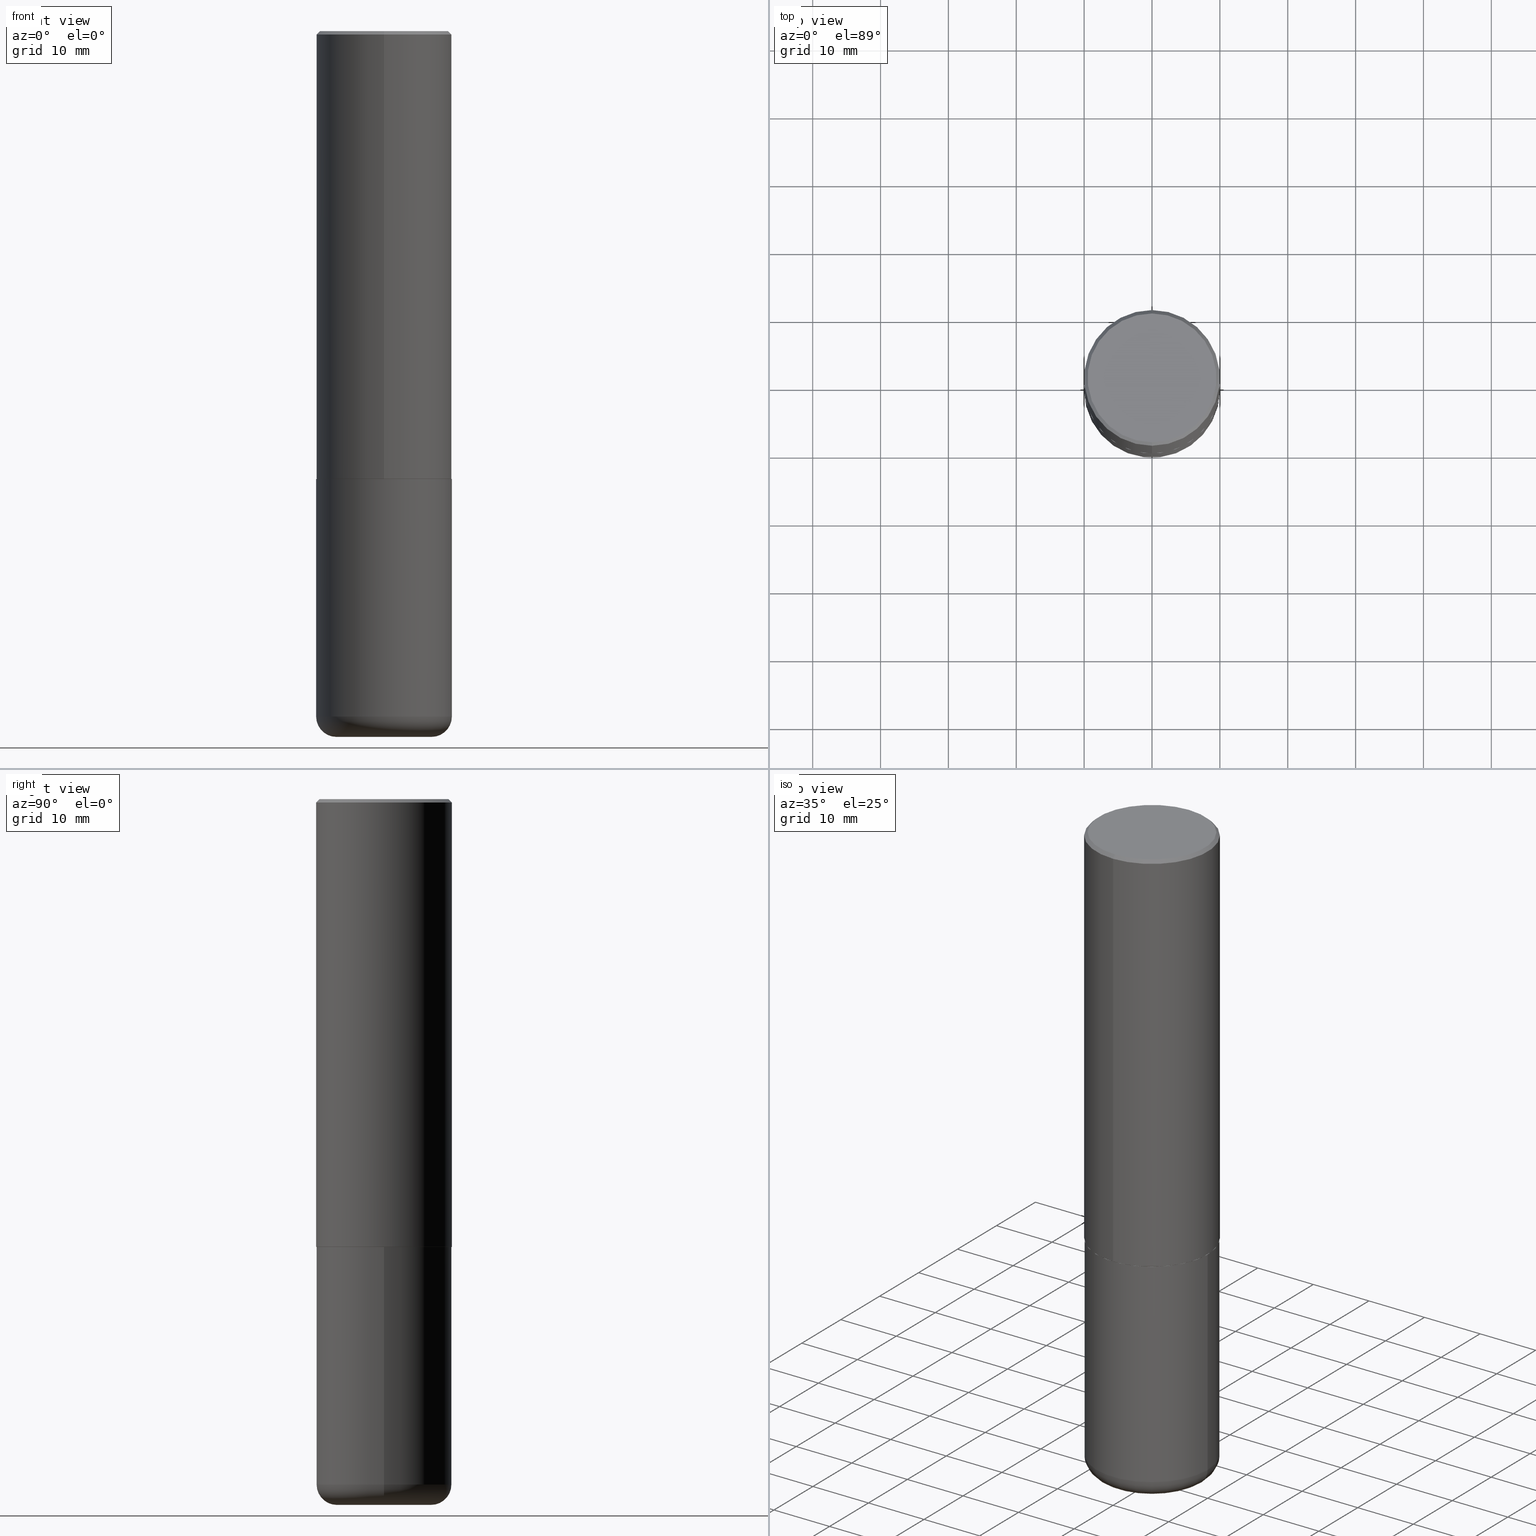
[diagram: canonical four-view strip — front | top / right | iso, engineering-drawing reading convention]
A machine part, canonical four-view strip (front | top / right | iso — engineering-drawing reading convention). The complete STEP part file that produces these views, byte-faithful:
ISO-10303-21;
HEADER;
FILE_DESCRIPTION (( 'STEP AP203' ),
    '1' );
FILE_NAME ('42723.STEP',
    '2024-03-04T04:07:09',
    ( '' ),
    ( '' ),
    'SwSTEP 2.0',
    'SolidWorks 2023',
    '' );
FILE_SCHEMA (( 'CONFIG_CONTROL_DESIGN' ));
ENDSEC;

DATA;
#1 = DIRECTION ( 'NONE',  ( 6.982962677686265922E-15, 1.000000000000000000, -3.488245283905469982E-15 ) ) ;
#2 = EDGE_CURVE ( 'NONE', #108, #218, #353, .T. ) ;
#3 = ADVANCED_FACE ( 'NONE', ( #334 ), #310, .T. ) ;
#4 = APPROVAL_ROLE ( '' ) ;
#5 = COORDINATED_UNIVERSAL_TIME_OFFSET ( 5, 0, .BEHIND. ) ;
#6 = DIRECTION ( 'NONE',  ( -2.445468806185136597E-29, 3.491481338843145583E-15, 1.000000000000000000 ) ) ;
#7 = APPROVAL_STATUS ( 'not_yet_approved' ) ;
#8 = DIRECTION ( 'NONE',  ( 1.000000000000000000, -6.982962677686265922E-15, 4.876176775795935793E-29 ) ) ;
#9 = AXIS2_PLACEMENT_3D ( 'NONE', #126, #55, #341 ) ;
#10 = COORDINATED_UNIVERSAL_TIME_OFFSET ( 5, 0, .BEHIND. ) ;
#11 = EDGE_CURVE ( 'NONE', #249, #54, #410, .T. ) ;
#12 = APPROVAL_STATUS ( 'not_yet_approved' ) ;
#13 = DIRECTION ( 'NONE',  ( -6.982962677686265922E-15, -1.000000000000000000, 3.488245283905469194E-15 ) ) ;
#14 = CC_DESIGN_PERSON_AND_ORGANIZATION_ASSIGNMENT ( #197, #131, ( #212 ) ) ;
#15 = ADVANCED_FACE ( 'NONE', ( #335 ), #210, .T. ) ;
#16 = DIRECTION ( 'NONE',  ( -6.982962677686265922E-15, -1.000000000000000000, 4.163344669033672479E-15 ) ) ;
#17 = CARTESIAN_POINT ( 'NONE',  ( 0.000000000000000000, 0.000000000000000000, 0.000000000000000000 ) ) ;
#18 = CARTESIAN_POINT ( 'NONE',  ( 9.724162160914577144E-29, -1.388352639577588421E-14, -3.976400000000000379 ) ) ;
#19 = DIRECTION ( 'NONE',  ( 2.447728531270410110E-29, -3.488245283905469588E-15, -1.000000000000000000 ) ) ;
#20 = DIRECTION ( 'NONE',  ( -2.447728531270410110E-29, 3.488245283905469588E-15, 1.000000000000000000 ) ) ;
#21 = EDGE_LOOP ( 'NONE', ( #394, #305 ) ) ;
#22 = EDGE_LOOP ( 'NONE', ( #24, #124, #80, #74 ) ) ;
#23 = DIRECTION ( 'NONE',  ( 1.000000000000000000, -6.982962677686267499E-15, 0.000000000000000000 ) ) ;
#24 = ORIENTED_EDGE ( 'NONE', *, *, #27, .F. ) ;
#25 = ORIENTED_EDGE ( 'NONE', *, *, #107, .T. ) ;
#26 = ORIENTED_EDGE ( 'NONE', *, *, #367, .F. ) ;
#27 = EDGE_CURVE ( 'NONE', #108, #249, #233, .T. ) ;
#28 = CARTESIAN_POINT ( 'NONE',  ( 2.793854037008778575E-15, 0.3926999999999909452, -2.598400000000002041 ) ) ;
#29 = PLANE ( 'NONE',  #73 ) ;
#30 = VERTEX_POINT ( 'NONE', #342 ) ;
#31 = DATE_AND_TIME ( #232, #418 ) ;
#32 = CARTESIAN_POINT ( 'NONE',  ( 0.000000000000000000, 0.000000000000000000, 0.000000000000000000 ) ) ;
#33 = ADVANCED_FACE ( 'NONE', ( #254 ), #29, .F. ) ;
#34 = PERSON_AND_ORGANIZATION_ROLE ( 'creator' ) ;
#35 = DIRECTION ( 'NONE',  ( -4.851104656540947709E-15, -0.7071067811865475727, -0.7071067811865474617 ) ) ;
#36 = MECHANICAL_CONTEXT ( 'NONE', #113, 'mechanical' ) ;
#37 = CARTESIAN_POINT ( 'NONE',  ( 6.354306145991459756E-29, -9.072265110850031044E-15, -2.598400000000000265 ) ) ;
#38 = DIRECTION ( 'NONE',  ( -2.447728531270410110E-29, 3.488245283905469588E-15, 1.000000000000000000 ) ) ;
#39 = CIRCLE ( 'NONE', #179, 0.3937000000000000499 ) ;
#40 = DIRECTION ( 'NONE',  ( -2.445468806185136597E-29, 3.491481338843145583E-15, 1.000000000000000000 ) ) ;
#41 = DIRECTION ( 'NONE',  ( 6.982962677686265133E-15, 1.000000000000000000, -3.491137977679279424E-15 ) ) ;
#42 = DIRECTION ( 'NONE',  ( -2.447728531270410110E-29, 3.488245283905469588E-15, 1.000000000000000000 ) ) ;
#43 = CIRCLE ( 'NONE', #101, 0.1180999999999999966 ) ;
#44 = CIRCLE ( 'NONE', #337, 0.3736999999999997546 ) ;
#45 = EDGE_LOOP ( 'NONE', ( #357, #340, #236, #336 ) ) ;
#46 = LENGTH_MEASURE_WITH_UNIT ( LENGTH_MEASURE( 0.02539999999999999897 ), #377 );
#47 = PRODUCT_RELATED_PRODUCT_CATEGORY ( 'detail', '', ( #213 ) ) ;
#48 = ORIENTED_EDGE ( 'NONE', *, *, #260, .T. ) ;
#49 = DIRECTION ( 'NONE',  ( -1.000000000000000000, 7.105427357601005014E-15, 0.000000000000000000 ) ) ;
#50 = APPROVAL_PERSON_ORGANIZATION ( #293, #164, #228 ) ;
#51 = DIRECTION ( 'NONE',  ( -2.447728531270410110E-29, 3.488245283905469588E-15, 1.000000000000000000 ) ) ;
#52 = DIRECTION ( 'NONE',  ( 1.000000000000000000, -6.982962677686268288E-15, 4.883557194083112901E-29 ) ) ;
#53 = ADVANCED_FACE ( 'NONE', ( #287 ), #184, .F. ) ;
#54 = VERTEX_POINT ( 'NONE', #199 ) ;
#55 = DIRECTION ( 'NONE',  ( -2.447728531270410110E-29, 3.488245283905469588E-15, 1.000000000000000000 ) ) ;
#56 = ORIENTED_EDGE ( 'NONE', *, *, #11, .T. ) ;
#57 = APPROVAL_DATE_TIME ( #61, #164 ) ;
#58 = VECTOR ( 'NONE', #121, 39.37007874015748143 ) ;
#59 = APPROVAL_ROLE ( '' ) ;
#60 = CIRCLE ( 'NONE', #147, 0.3937000000000000499 ) ;
#61 = DATE_AND_TIME ( #351, #217 ) ;
#62 = FACE_OUTER_BOUND ( 'NONE', #256, .T. ) ;
#63 = APPROVAL_STATUS ( 'not_yet_approved' ) ;
#64 = ORIENTED_EDGE ( 'NONE', *, *, #383, .T. ) ;
#65 = AXIS2_PLACEMENT_3D ( 'NONE', #161, #87, #52 ) ;
#66 = CARTESIAN_POINT ( 'NONE',  ( 0.3937000000000000499, -1.182145751705511584E-14, -2.598400000000000265 ) ) ;
#67 = AXIS2_PLACEMENT_3D ( 'NONE', #255, #278, #333 ) ;
#68 = ADVANCED_FACE ( 'NONE', ( #325 ), #349, .T. ) ;
#69 = EDGE_CURVE ( 'NONE', #54, #91, #168, .T. ) ;
#70 = EDGE_LOOP ( 'NONE', ( #85, #120, #312, #194 ) ) ;
#71 = DIRECTION ( 'NONE',  ( -2.447728531270410110E-29, 3.488245283905469588E-15, 1.000000000000000000 ) ) ;
#72 = CARTESIAN_POINT ( 'NONE',  ( 6.360177815653033563E-29, -9.063856545699975565E-15, -2.598400000000000265 ) ) ;
#73 = AXIS2_PLACEMENT_3D ( 'NONE', #222, #190, #285 ) ;
#74 = ORIENTED_EDGE ( 'NONE', *, *, #209, .F. ) ;
#75 = CC_DESIGN_SECURITY_CLASSIFICATION ( #187, ( #212 ) ) ;
#76 = FACE_OUTER_BOUND ( 'NONE', #237, .T. ) ;
#77 = EDGE_CURVE ( 'NONE', #225, #356, #264, .T. ) ;
#78 = ORIENTED_EDGE ( 'NONE', *, *, #260, .F. ) ;
#79 = FACE_OUTER_BOUND ( 'NONE', #156, .T. ) ;
#80 = ORIENTED_EDGE ( 'NONE', *, *, #92, .T. ) ;
#81 = FACE_OUTER_BOUND ( 'NONE', #70, .T. ) ;
#82 = AXIS2_PLACEMENT_3D ( 'NONE', #214, #328, #41 ) ;
#83 = LOCAL_TIME ( 23, 7, 9.000000000000000000, #170 ) ;
#84 = CC_DESIGN_PERSON_AND_ORGANIZATION_ASSIGNMENT ( #172, #34, ( #115 ) ) ;
#85 = ORIENTED_EDGE ( 'NONE', *, *, #252, .T. ) ;
#86 = DIRECTION ( 'NONE',  ( -6.982962677686265133E-15, -1.000000000000000000, 4.173946514383900962E-15 ) ) ;
#87 = DIRECTION ( 'NONE',  ( -2.445468806185136597E-29, 3.491481338843145583E-15, 1.000000000000000000 ) ) ;
#88 = ORIENTED_EDGE ( 'NONE', *, *, #405, .F. ) ;
#89 = ORIENTED_EDGE ( 'NONE', *, *, #69, .F. ) ;
#90 = CONICAL_SURFACE ( 'NONE', #169, 0.3926999999999999935, 0.7853981633976873100 ) ;
#91 = VERTEX_POINT ( 'NONE', #66 ) ;
#92 = EDGE_CURVE ( 'NONE', #218, #94, #43, .T. ) ;
#93 =( NAMED_UNIT ( * ) PLANE_ANGLE_UNIT ( ) SI_UNIT ( $, .RADIAN. ) );
#94 = VERTEX_POINT ( 'NONE', #171 ) ;
#95 = APPROVAL_DATE_TIME ( #31, #307 ) ;
#96 = VECTOR ( 'NONE', #211, 39.37007874015748143 ) ;
#97 = APPLICATION_PROTOCOL_DEFINITION ( 'international standard', 'config_control_design', 1994, #195 ) ;
#98 = CALENDAR_DATE ( 2024, 3, 3 ) ;
#99 = FACE_OUTER_BOUND ( 'NONE', #111, .T. ) ;
#100 = COORDINATED_UNIVERSAL_TIME_OFFSET ( 5, 0, .BEHIND. ) ;
#101 = AXIS2_PLACEMENT_3D ( 'NONE', #386, #355, #231 ) ;
#102 = AXIS2_PLACEMENT_3D ( 'NONE', #381, #259, #372 ) ;
#103 = ORIENTED_EDGE ( 'NONE', *, *, #361, .F. ) ;
#104 = LOCAL_TIME ( 23, 7, 9.000000000000000000, #5 ) ;
#105 = FACE_OUTER_BOUND ( 'NONE', #45, .T. ) ;
#106 = LINE ( 'NONE', #275, #96 ) ;
#107 = EDGE_CURVE ( 'NONE', #94, #249, #162, .T. ) ;
#108 = VERTEX_POINT ( 'NONE', #348 ) ;
#109 = ORGANIZATION ( 'UNSPECIFIED', 'UNSPECIFIED', '' ) ;
#110 = LOCAL_TIME ( 23, 7, 9.000000000000000000, #10 ) ;
#111 = EDGE_LOOP ( 'NONE', ( #78, #380, #159, #103 ) ) ;
#112 = CARTESIAN_POINT ( 'NONE',  ( 2.790301323329976493E-15, 0.3926999999999909452, -2.598400000000002041 ) ) ;
#113 = APPLICATION_CONTEXT ( 'configuration controlled 3d designs of mechanical parts and assemblies' ) ;
#114 = DIRECTION ( 'NONE',  ( -2.447728531270410110E-29, 3.488245283905469588E-15, 1.000000000000000000 ) ) ;
#115 = PRODUCT_DEFINITION ( 'UNKNOWN', '', #212, #240 ) ;
#116 = EDGE_LOOP ( 'NONE', ( #88, #220, #311, #317 ) ) ;
#117 = CIRCLE ( 'NONE', #346, 0.3937000000000000499 ) ;
#118 = CC_DESIGN_APPROVAL ( #307, ( #115 ) ) ;
#119 = CARTESIAN_POINT ( 'NONE',  ( 6.360177815653033563E-29, -9.063856545699975565E-15, -2.598400000000000265 ) ) ;
#120 = ORIENTED_EDGE ( 'NONE', *, *, #27, .T. ) ;
#121 = DIRECTION ( 'NONE',  ( -4.937700262165728178E-15, -0.7071067811867141062, 0.7071067811863809283 ) ) ;
#122 = DIRECTION ( 'NONE',  ( 7.105427357601001859E-15, 1.000000000000000000, -3.491481338843145583E-15 ) ) ;
#123 = ORIENTED_EDGE ( 'NONE', *, *, #209, .T. ) ;
#124 = ORIENTED_EDGE ( 'NONE', *, *, #2, .T. ) ;
#125 = APPROVAL_PERSON_ORGANIZATION ( #384, #130, #59 ) ;
#126 = CARTESIAN_POINT ( 'NONE',  ( 4.895457062540840994E-31, -6.976490567810969350E-17, -0.02000000000000008715 ) ) ;
#127 = DIRECTION ( 'NONE',  ( 1.000000000000000000, -6.982962677686265922E-15, 4.876176775795935793E-29 ) ) ;
#128 = UNCERTAINTY_MEASURE_WITH_UNIT (LENGTH_MEASURE( 1.000000000000000082E-05 ), #407, 'distance_accuracy_value', 'NONE');
#129 = PERSON_AND_ORGANIZATION ( #158, #109 ) ;
#130 = APPROVAL ( #7, 'UNSPECIFIED' ) ;
#131 = PERSON_AND_ORGANIZATION_ROLE ( 'creator' ) ;
#132 = DIRECTION ( 'NONE',  ( 1.000000000000000000, -6.982962677686267499E-15, 0.000000000000000000 ) ) ;
#133 = AXIS2_PLACEMENT_3D ( 'NONE', #37, #6, #132 ) ;
#134 = AXIS2_PLACEMENT_3D ( 'NONE', #347, #392, #261 ) ;
#135 = DATE_AND_TIME ( #98, #104 ) ;
#136 = ADVANCED_FACE ( 'NONE', ( #62 ), #322, .T. ) ;
#137 = DIRECTION ( 'NONE',  ( 1.000000000000000000, -6.982962677686267499E-15, 0.000000000000000000 ) ) ;
#138 = PERSON_AND_ORGANIZATION ( #158, #109 ) ;
#139 = EDGE_CURVE ( 'NONE', #191, #225, #44, .T. ) ;
#140 = AXIS2_PLACEMENT_3D ( 'NONE', #412, #122, #49 ) ;
#141 = FACE_OUTER_BOUND ( 'NONE', #116, .T. ) ;
#142 = AXIS2_PLACEMENT_3D ( 'NONE', #119, #20, #86 ) ;
#143 = CC_DESIGN_APPROVAL ( #130, ( #187 ) ) ;
#144 = CARTESIAN_POINT ( 'NONE',  ( -2.632373081744935132E-15, -0.3736999999999997546, 1.613949360642593119E-15 ) ) ;
#145 = DIRECTION ( 'NONE',  ( -2.445468806185136597E-29, 3.491481338843145583E-15, 1.000000000000000000 ) ) ;
#146 = CLOSED_SHELL ( 'NONE', ( #173, #203, #283, #308, #268, #150, #330, #53 ) ) ;
#147 = AXIS2_PLACEMENT_3D ( 'NONE', #175, #40, #360 ) ;
#148 = DIRECTION ( 'NONE',  ( -6.982962677686265133E-15, -1.000000000000000000, 3.491137977679279424E-15 ) ) ;
#149 = VERTEX_POINT ( 'NONE', #390 ) ;
#150 = ADVANCED_FACE ( 'NONE', ( #99 ), #90, .T. ) ;
#151 = CARTESIAN_POINT ( 'NONE',  ( 6.354306145991459756E-29, -9.072265110850031044E-15, -2.598400000000000265 ) ) ;
#152 = ORIENTED_EDGE ( 'NONE', *, *, #188, .T. ) ;
#153 = CARTESIAN_POINT ( 'NONE',  ( -2.700978061722651252E-15, -0.3937000000000001054, -0.01999999999999870978 ) ) ;
#154 = CARTESIAN_POINT ( 'NONE',  ( 0.000000000000000000, 0.000000000000000000, 0.000000000000000000 ) ) ;
#155 = CIRCLE ( 'NONE', #9, 0.3937000000000000499 ) ;
#156 = EDGE_LOOP ( 'NONE', ( #411, #48, #282, #302 ) ) ;
#157 = CARTESIAN_POINT ( 'NONE',  ( 6.357730087121764723E-29, -9.060368300416068565E-15, -2.597400000000000375 ) ) ;
#158 = PERSON ( 'UNSPECIFIED', 'UNSPECIFIED', 'UNSPECIFIED', ('UNSPECIFIED'), ('UNSPECIFIED'), ('UNSPECIFIED') ) ;
#159 = ORIENTED_EDGE ( 'NONE', *, *, #350, .T. ) ;
#160 = DIRECTION ( 'NONE',  ( -2.445468806185136877E-29, 3.491481338843145188E-15, 1.000000000000000000 ) ) ;
#161 = CARTESIAN_POINT ( 'NONE',  ( 9.724162160914577144E-29, -1.388352639577588421E-14, -3.976400000000000379 ) ) ;
#162 = CIRCLE ( 'NONE', #185, 0.3937000000000000499 ) ;
#163 = AXIS2_PLACEMENT_3D ( 'NONE', #18, #271, #246 ) ;
#164 = APPROVAL ( #63, 'UNSPECIFIED' ) ;
#165 = ADVANCED_FACE ( 'NONE', ( #81 ), #224, .T. ) ;
#166 = DATE_TIME_ROLE ( 'classification_date' ) ;
#167 = CALENDAR_DATE ( 2024, 3, 3 ) ;
#168 = CIRCLE ( 'NONE', #133, 0.3937000000000000499 ) ;
#169 = AXIS2_PLACEMENT_3D ( 'NONE', #352, #38, #241 ) ;
#170 = COORDINATED_UNIVERSAL_TIME_OFFSET ( 5, 0, .BEHIND. ) ;
#171 = CARTESIAN_POINT ( 'NONE',  ( 0.3937000000000000499, -1.663271880198097216E-14, -3.976400000000000823 ) ) ;
#172 = PERSON_AND_ORGANIZATION ( #158, #109 ) ;
#173 = ADVANCED_FACE ( 'NONE', ( #79 ), #402, .T. ) ;
#174 = CIRCLE ( 'NONE', #67, 0.3926999999999999935 ) ;
#175 = CARTESIAN_POINT ( 'NONE',  ( 9.724162160914578265E-29, -1.388352639577588736E-14, -3.976400000000000823 ) ) ;
#176 = CARTESIAN_POINT ( 'NONE',  ( -0.3937000000000000499, -1.108611964508837021E-14, -3.976400000000000823 ) ) ;
#177 = CARTESIAN_POINT ( 'NONE',  ( -2.742209443527332910E-15, -0.3927000000000090973, -2.598399999999998489 ) ) ;
#178 = DIRECTION ( 'NONE',  ( -6.982962677686265922E-15, -1.000000000000000000, 3.488245283905469194E-15 ) ) ;
#179 = AXIS2_PLACEMENT_3D ( 'NONE', #151, #284, #23 ) ;
#180 =( NAMED_UNIT ( * ) SI_UNIT ( $, .STERADIAN. ) SOLID_ANGLE_UNIT ( ) );
#181 = EDGE_CURVE ( 'NONE', #149, #356, #106, .T. ) ;
#182 = CARTESIAN_POINT ( 'NONE',  ( 1.001297202692504215E-28, -1.429587034189326149E-14, -4.094500000000000028 ) ) ;
#183 = LINE ( 'NONE', #409, #408 ) ;
#184 = PLANE ( 'NONE',  #216 ) ;
#185 = AXIS2_PLACEMENT_3D ( 'NONE', #393, #324, #137 ) ;
#186 = AXIS2_PLACEMENT_3D ( 'NONE', #72, #114, #300 ) ;
#187 = SECURITY_CLASSIFICATION ( '', '', #205 ) ;
#188 = EDGE_CURVE ( 'NONE', #149, #30, #295, .T. ) ;
#189 = LINE ( 'NONE', #414, #354 ) ;
#190 = DIRECTION ( 'NONE',  ( 2.438088387897960049E-29, -3.491481338843145188E-15, -1.000000000000000000 ) ) ;
#191 = VERTEX_POINT ( 'NONE', #368 ) ;
#192 = CC_DESIGN_PERSON_AND_ORGANIZATION_ASSIGNMENT ( #138, #198, ( #213 ) ) ;
#193 = PERSON_AND_ORGANIZATION ( #158, #109 ) ;
#194 = ORIENTED_EDGE ( 'NONE', *, *, #92, .F. ) ;
#195 = APPLICATION_CONTEXT ( 'configuration controlled 3d designs of mechanical parts and assemblies' ) ;
#196 = AXIS2_PLACEMENT_3D ( 'NONE', #301, #145, #272 ) ;
#197 = PERSON_AND_ORGANIZATION ( #158, #109 ) ;
#198 = PERSON_AND_ORGANIZATION_ROLE ( 'design_owner' ) ;
#199 = CARTESIAN_POINT ( 'NONE',  ( -0.3937000000000000499, -8.680489002625445206E-15, -2.598400000000000265 ) ) ;
#200 = APPROVAL_DATE_TIME ( #290, #130 ) ;
#201 = DIRECTION ( 'NONE',  ( -2.445468806185136597E-29, 3.491481338843145583E-15, 1.000000000000000000 ) ) ;
#202 = ORIENTED_EDGE ( 'NONE', *, *, #320, .F. ) ;
#203 = ADVANCED_FACE ( 'NONE', ( #326 ), #298, .T. ) ;
#204 = AXIS2_PLACEMENT_3D ( 'NONE', #242, #364, #178 ) ;
#205 = SECURITY_CLASSIFICATION_LEVEL ( 'unclassified' ) ;
#206 = CC_DESIGN_APPROVAL ( #164, ( #212 ) ) ;
#207 = CC_DESIGN_DATE_AND_TIME_ASSIGNMENT ( #263, #166, ( #187 ) ) ;
#208 = CARTESIAN_POINT ( 'NONE',  ( 2.749192406205083217E-15, 0.3936999999999999389, -0.02000000000000146105 ) ) ;
#209 = EDGE_CURVE ( 'NONE', #249, #94, #60, .T. ) ;
#210 = TOROIDAL_SURFACE ( 'NONE', #65, 0.2756000000000000116, 0.1181000000000000105 ) ;
#211 = DIRECTION ( 'NONE',  ( -2.447728531270410390E-29, 3.488245283905469982E-15, 1.000000000000000000 ) ) ;
#212 = PRODUCT_DEFINITION_FORMATION_WITH_SPECIFIED_SOURCE ( 'ANY', '', #213, .NOT_KNOWN. ) ;
#213 = PRODUCT ( '42723', '42723', '', ( #36 ) ) ;
#214 = CARTESIAN_POINT ( 'NONE',  ( 4.895457062540840994E-31, -6.976490567810969350E-17, -0.02000000000000008715 ) ) ;
#215 = CARTESIAN_POINT ( 'NONE',  ( 4.895457062540840994E-31, -6.976490567810969350E-17, -0.02000000000000008715 ) ) ;
#216 = AXIS2_PLACEMENT_3D ( 'NONE', #415, #379, #1 ) ;
#217 = LOCAL_TIME ( 23, 7, 9.000000000000000000, #100 ) ;
#218 = VERTEX_POINT ( 'NONE', #397 ) ;
#219 = ORIENTED_EDGE ( 'NONE', *, *, #139, .T. ) ;
#220 = ORIENTED_EDGE ( 'NONE', *, *, #361, .T. ) ;
#221 = DIRECTION ( 'NONE',  ( -2.447728531270410390E-29, 3.488245283905469982E-15, 1.000000000000000000 ) ) ;
#222 = CARTESIAN_POINT ( 'NONE',  ( 6.354306145991459756E-29, -9.072265110850031044E-15, -2.598400000000000265 ) ) ;
#223 = DIRECTION ( 'NONE',  ( -2.445468806185136597E-29, 3.491481338843145583E-15, 1.000000000000000000 ) ) ;
#224 = TOROIDAL_SURFACE ( 'NONE', #163, 0.2756000000000000116, 0.1181000000000000105 ) ;
#225 = VERTEX_POINT ( 'NONE', #144 ) ;
#226 = ORIENTED_EDGE ( 'NONE', *, *, #77, .T. ) ;
#227 = CARTESIAN_POINT ( 'NONE',  ( -0.3937000000000000499, 2.797406750687514786E-15, -1.936584745033356735E-29 ) ) ;
#228 = APPROVAL_ROLE ( '' ) ;
#229 = CLOSED_SHELL ( 'NONE', ( #3, #165, #33, #136, #15, #68 ) ) ;
#230 = CIRCLE ( 'NONE', #378, 0.3937000000000002720 ) ;
#231 = DIRECTION ( 'NONE',  ( 1.000000000000000000, -6.982962677686273021E-15, 0.000000000000000000 ) ) ;
#232 = CALENDAR_DATE ( 2024, 3, 3 ) ;
#233 = CIRCLE ( 'NONE', #140, 0.1180999999999999966 ) ;
#234 = CIRCLE ( 'NONE', #196, 0.2756000000000000116 ) ;
#235 = PERSON_AND_ORGANIZATION ( #158, #109 ) ;
#236 = ORIENTED_EDGE ( 'NONE', *, *, #292, .T. ) ;
#237 = EDGE_LOOP ( 'NONE', ( #273, #226, #413, #359 ) ) ;
#238 = CC_DESIGN_DATE_AND_TIME_ASSIGNMENT ( #135, #321, ( #115 ) ) ;
#239 = DIRECTION ( 'NONE',  ( 6.982962677686265133E-15, 1.000000000000000000, -3.491137977679279424E-15 ) ) ;
#240 = DESIGN_CONTEXT ( 'detailed design', #195, 'design' ) ;
#241 = DIRECTION ( 'NONE',  ( -6.982962677686265133E-15, -1.000000000000000000, 4.173946514383900962E-15 ) ) ;
#242 = CARTESIAN_POINT ( 'NONE',  ( 0.000000000000000000, 0.000000000000000000, 0.000000000000000000 ) ) ;
#243 = ORIENTED_EDGE ( 'NONE', *, *, #339, .T. ) ;
#244 = ORIENTED_EDGE ( 'NONE', *, *, #391, .T. ) ;
#245 = LINE ( 'NONE', #270, #265 ) ;
#246 = DIRECTION ( 'NONE',  ( 1.000000000000000000, -6.982962677686268288E-15, 4.883557194083112901E-29 ) ) ;
#247 = ORIENTED_EDGE ( 'NONE', *, *, #383, .F. ) ;
#248 = AXIS2_PLACEMENT_3D ( 'NONE', #406, #306, #370 ) ;
#249 = VERTEX_POINT ( 'NONE', #176 ) ;
#250 = AXIS2_PLACEMENT_3D ( 'NONE', #215, #19, #239 ) ;
#251 = EDGE_LOOP ( 'NONE', ( #219, #243 ) ) ;
#252 = EDGE_CURVE ( 'NONE', #218, #108, #234, .T. ) ;
#253 = CARTESIAN_POINT ( 'NONE',  ( -2.742209443527332910E-15, -0.3927000000000090973, -2.598399999999998489 ) ) ;
#254 = FACE_OUTER_BOUND ( 'NONE', #371, .T. ) ;
#255 = CARTESIAN_POINT ( 'NONE',  ( 6.360177815653033563E-29, -9.063856545699975565E-15, -2.598400000000000265 ) ) ;
#256 = EDGE_LOOP ( 'NONE', ( #373, #123, #64, #89 ) ) ;
#257 = DIRECTION ( 'NONE',  ( -6.982962677686265922E-15, -1.000000000000000000, 4.163344669033672479E-15 ) ) ;
#258 = DIRECTION ( 'NONE',  ( -2.445468806185136877E-29, 3.491481338843145188E-15, 1.000000000000000000 ) ) ;
#259 = DIRECTION ( 'NONE',  ( -2.447728531270410110E-29, 3.488245283905469588E-15, 1.000000000000000000 ) ) ;
#260 = EDGE_CURVE ( 'NONE', #374, #30, #304, .T. ) ;
#261 = DIRECTION ( 'NONE',  ( 1.000000000000000000, 0.000000000000000000, 0.000000000000000000 ) ) ;
#262 = CARTESIAN_POINT ( 'NONE',  ( -2.700978061722651252E-15, -0.3937000000000001054, -0.01999999999999870978 ) ) ;
#263 = DATE_AND_TIME ( #167, #83 ) ;
#264 = LINE ( 'NONE', #262, #362 ) ;
#265 = VECTOR ( 'NONE', #366, 39.37007874015748143 ) ;
#266 = CARTESIAN_POINT ( 'NONE',  ( -7.597555942708192484E-45, 1.082723772174391931E-30, 3.103920980471204642E-16 ) ) ;
#267 = SHAPE_DEFINITION_REPRESENTATION ( #416, #382 ) ;
#268 = ADVANCED_FACE ( 'NONE', ( #141 ), #400, .T. ) ;
#269 = AXIS2_PLACEMENT_3D ( 'NONE', #331, #71, #16 ) ;
#270 = CARTESIAN_POINT ( 'NONE',  ( 2.749192406205083217E-15, 0.3936999999999999389, -0.02000000000000146105 ) ) ;
#271 = DIRECTION ( 'NONE',  ( -2.445468806185136597E-29, 3.491481338843145583E-15, 1.000000000000000000 ) ) ;
#272 = DIRECTION ( 'NONE',  ( 1.000000000000000000, -6.982962677686265922E-15, 0.000000000000000000 ) ) ;
#273 = ORIENTED_EDGE ( 'NONE', *, *, #339, .F. ) ;
#274 = CONICAL_SURFACE ( 'NONE', #250, 0.3937000000000000499, 0.7853981633974449483 ) ;
#275 = CARTESIAN_POINT ( 'NONE',  ( -2.749192406205084005E-15, -0.3937000000000001609, 1.373322168273583828E-15 ) ) ;
#276 = EDGE_LOOP ( 'NONE', ( #25, #56, #417, #247 ) ) ;
#277 = PLANE ( 'NONE',  #248 ) ;
#278 = DIRECTION ( 'NONE',  ( -2.447728531270410110E-29, 3.488245283905469588E-15, 1.000000000000000000 ) ) ;
#279 = CC_DESIGN_PERSON_AND_ORGANIZATION_ASSIGNMENT ( #129, #319, ( #212 ) ) ;
#280 =( GEOMETRIC_REPRESENTATION_CONTEXT ( 3 ) GLOBAL_UNCERTAINTY_ASSIGNED_CONTEXT ( ( #128 ) ) GLOBAL_UNIT_ASSIGNED_CONTEXT ( ( #407, #93, #180 ) ) REPRESENTATION_CONTEXT ( 'NONE', 'WORKASPACE' ) );
#281 = DIRECTION ( 'NONE',  ( -2.445468806185136597E-29, 3.491481338843145583E-15, 1.000000000000000000 ) ) ;
#282 = ORIENTED_EDGE ( 'NONE', *, *, #188, .F. ) ;
#283 = ADVANCED_FACE ( 'NONE', ( #76 ), #396, .T. ) ;
#284 = DIRECTION ( 'NONE',  ( -2.445468806185136597E-29, 3.491481338843145583E-15, 1.000000000000000000 ) ) ;
#285 = DIRECTION ( 'NONE',  ( -1.000000000000000000, 6.982962677686265922E-15, -4.876176775795935793E-29 ) ) ;
#286 = VERTEX_POINT ( 'NONE', #177 ) ;
#287 = FACE_OUTER_BOUND ( 'NONE', #251, .T. ) ;
#288 = AXIS2_PLACEMENT_3D ( 'NONE', #291, #297, #294 ) ;
#289 = VECTOR ( 'NONE', #404, 39.37007874015748143 ) ;
#290 = DATE_AND_TIME ( #344, #110 ) ;
#291 = CARTESIAN_POINT ( 'NONE',  ( 1.001297202692504215E-28, -1.429587034189326149E-14, -4.094500000000000028 ) ) ;
#292 = EDGE_CURVE ( 'NONE', #191, #315, #245, .T. ) ;
#293 = PERSON_AND_ORGANIZATION ( #158, #109 ) ;
#294 = DIRECTION ( 'NONE',  ( -1.000000000000000000, 6.982962677686265922E-15, -4.876176775795935793E-29 ) ) ;
#295 = CIRCLE ( 'NONE', #269, 0.3937000000000002720 ) ;
#296 = DIRECTION ( 'NONE',  ( -6.982962677686265922E-15, -1.000000000000000000, 3.488245283905469588E-15 ) ) ;
#297 = DIRECTION ( 'NONE',  ( 2.438088387897960049E-29, -3.491481338843145188E-15, -1.000000000000000000 ) ) ;
#298 = CYLINDRICAL_SURFACE ( 'NONE', #369, 0.3937000000000001609 ) ;
#299 = CIRCLE ( 'NONE', #102, 0.3736999999999997546 ) ;
#300 = DIRECTION ( 'NONE',  ( -6.982962677686265133E-15, -1.000000000000000000, 4.173946514383900962E-15 ) ) ;
#301 = CARTESIAN_POINT ( 'NONE',  ( 1.001297202692504215E-28, -1.429587034189326149E-14, -4.094500000000000028 ) ) ;
#302 = ORIENTED_EDGE ( 'NONE', *, *, #350, .F. ) ;
#303 = APPROVAL_PERSON_ORGANIZATION ( #235, #307, #4 ) ;
#304 = LINE ( 'NONE', #112, #289 ) ;
#305 = ORIENTED_EDGE ( 'NONE', *, *, #2, .F. ) ;
#306 = DIRECTION ( 'NONE',  ( -2.447728531270409269E-29, 3.488245283905469982E-15, 1.000000000000000000 ) ) ;
#307 = APPROVAL ( #12, 'UNSPECIFIED' ) ;
#308 = ADVANCED_FACE ( 'NONE', ( #105 ), #274, .T. ) ;
#309 = LINE ( 'NONE', #253, #58 ) ;
#310 = CYLINDRICAL_SURFACE ( 'NONE', #376, 0.3937000000000000499 ) ;
#311 = ORIENTED_EDGE ( 'NONE', *, *, #181, .T. ) ;
#312 = ORIENTED_EDGE ( 'NONE', *, *, #107, .F. ) ;
#313 = ORIENTED_EDGE ( 'NONE', *, *, #405, .T. ) ;
#314 = ORIENTED_EDGE ( 'NONE', *, *, #345, .F. ) ;
#315 = VERTEX_POINT ( 'NONE', #208 ) ;
#316 = PERSON_AND_ORGANIZATION_ROLE ( 'classification_officer' ) ;
#317 = ORIENTED_EDGE ( 'NONE', *, *, #399, .F. ) ;
#318 = CIRCLE ( 'NONE', #142, 0.3926999999999999935 ) ;
#319 = PERSON_AND_ORGANIZATION_ROLE ( 'design_supplier' ) ;
#320 = EDGE_CURVE ( 'NONE', #356, #315, #117, .T. ) ;
#321 = DATE_TIME_ROLE ( 'creation_date' ) ;
#322 = CYLINDRICAL_SURFACE ( 'NONE', #363, 0.3937000000000000499 ) ;
#323 = APPLICATION_PROTOCOL_DEFINITION ( 'international standard', 'config_control_design', 1994, #113 ) ;
#324 = DIRECTION ( 'NONE',  ( -2.445468806185136597E-29, 3.491481338843145583E-15, 1.000000000000000000 ) ) ;
#325 = FACE_OUTER_BOUND ( 'NONE', #21, .T. ) ;
#326 = FACE_OUTER_BOUND ( 'NONE', #365, .T. ) ;
#327 = DIRECTION ( 'NONE',  ( -2.447728531270410110E-29, 3.488245283905469588E-15, 1.000000000000000000 ) ) ;
#328 = DIRECTION ( 'NONE',  ( 2.447728531270410110E-29, -3.488245283905469588E-15, -1.000000000000000000 ) ) ;
#329 = CARTESIAN_POINT ( 'NONE',  ( 4.895457062540840994E-31, -6.976490567810969350E-17, -0.02000000000000008715 ) ) ;
#330 = ADVANCED_FACE ( 'NONE', ( #358 ), #277, .F. ) ;
#331 = CARTESIAN_POINT ( 'NONE',  ( 6.357730087121764723E-29, -9.060368300416068565E-15, -2.597400000000000375 ) ) ;
#332 = ORIENTED_EDGE ( 'NONE', *, *, #69, .T. ) ;
#333 = DIRECTION ( 'NONE',  ( -6.982962677686265133E-15, -1.000000000000000000, 4.173946514383900962E-15 ) ) ;
#334 = FACE_OUTER_BOUND ( 'NONE', #276, .T. ) ;
#335 = FACE_OUTER_BOUND ( 'NONE', #22, .T. ) ;
#336 = ORIENTED_EDGE ( 'NONE', *, *, #399, .T. ) ;
#337 = AXIS2_PLACEMENT_3D ( 'NONE', #266, #387, #296 ) ;
#338 = DIRECTION ( 'NONE',  ( 1.000000000000000000, -6.982962677686265922E-15, 0.000000000000000000 ) ) ;
#339 = EDGE_CURVE ( 'NONE', #225, #191, #299, .T. ) ;
#340 = ORIENTED_EDGE ( 'NONE', *, *, #139, .F. ) ;
#341 = DIRECTION ( 'NONE',  ( -6.982962677686265133E-15, -1.000000000000000000, 3.491137977679279424E-15 ) ) ;
#342 = CARTESIAN_POINT ( 'NONE',  ( 2.797406750687547524E-15, 0.3936999999999912236, -2.597400000000002152 ) ) ;
#343 = CC_DESIGN_PERSON_AND_ORGANIZATION_ASSIGNMENT ( #193, #316, ( #187 ) ) ;
#344 = CALENDAR_DATE ( 2024, 3, 3 ) ;
#345 = EDGE_CURVE ( 'NONE', #286, #374, #318, .T. ) ;
#346 = AXIS2_PLACEMENT_3D ( 'NONE', #329, #42, #148 ) ;
#347 = CARTESIAN_POINT ( 'NONE',  ( 0.000000000000000000, 0.000000000000000000, 0.000000000000000000 ) ) ;
#348 = CARTESIAN_POINT ( 'NONE',  ( -0.2756000000000000116, -1.171186710361339913E-14, -4.094500000000000028 ) ) ;
#349 = PLANE ( 'NONE',  #288 ) ;
#350 = EDGE_CURVE ( 'NONE', #286, #149, #309, .T. ) ;
#351 = CALENDAR_DATE ( 2024, 3, 3 ) ;
#352 = CARTESIAN_POINT ( 'NONE',  ( 6.360177815653033563E-29, -9.063856545699975565E-15, -2.598400000000000265 ) ) ;
#353 = CIRCLE ( 'NONE', #395, 0.2756000000000000116 ) ;
#354 = VECTOR ( 'NONE', #221, 39.37007874015748143 ) ;
#355 = DIRECTION ( 'NONE',  ( -6.982962677686266711E-15, -1.000000000000000000, 3.491481338843145583E-15 ) ) ;
#356 = VERTEX_POINT ( 'NONE', #153 ) ;
#357 = ORIENTED_EDGE ( 'NONE', *, *, #77, .F. ) ;
#358 = FACE_OUTER_BOUND ( 'NONE', #375, .T. ) ;
#359 = ORIENTED_EDGE ( 'NONE', *, *, #292, .F. ) ;
#360 = DIRECTION ( 'NONE',  ( 1.000000000000000000, -6.982962677686267499E-15, 0.000000000000000000 ) ) ;
#361 = EDGE_CURVE ( 'NONE', #30, #149, #230, .T. ) ;
#362 = VECTOR ( 'NONE', #35, 39.37007874015748143 ) ;
#363 = AXIS2_PLACEMENT_3D ( 'NONE', #32, #201, #8 ) ;
#364 = DIRECTION ( 'NONE',  ( -2.447728531270410110E-29, 3.488245283905469588E-15, 1.000000000000000000 ) ) ;
#365 = EDGE_LOOP ( 'NONE', ( #152, #313, #202, #401 ) ) ;
#366 = DIRECTION ( 'NONE',  ( 4.937700262164530687E-15, 0.7071067811865426878, -0.7071067811865523467 ) ) ;
#367 = EDGE_CURVE ( 'NONE', #374, #286, #174, .T. ) ;
#368 = CARTESIAN_POINT ( 'NONE',  ( 2.679362779428219524E-15, 0.3736999999999997546, -9.931651645483526840E-16 ) ) ;
#369 = AXIS2_PLACEMENT_3D ( 'NONE', #17, #327, #13 ) ;
#370 = DIRECTION ( 'NONE',  ( -6.982962677686265922E-15, -1.000000000000000000, 3.488245283905469982E-15 ) ) ;
#371 = EDGE_LOOP ( 'NONE', ( #244, #332 ) ) ;
#372 = DIRECTION ( 'NONE',  ( -6.982962677686265922E-15, -1.000000000000000000, 3.488245283905469588E-15 ) ) ;
#373 = ORIENTED_EDGE ( 'NONE', *, *, #11, .F. ) ;
#374 = VERTEX_POINT ( 'NONE', #28 ) ;
#375 = EDGE_LOOP ( 'NONE', ( #314, #26 ) ) ;
#376 = AXIS2_PLACEMENT_3D ( 'NONE', #154, #281, #127 ) ;
#377 =( LENGTH_UNIT ( ) NAMED_UNIT ( * ) SI_UNIT ( $, .METRE. ) );
#378 = AXIS2_PLACEMENT_3D ( 'NONE', #157, #51, #257 ) ;
#379 = DIRECTION ( 'NONE',  ( 2.447728531270409269E-29, -3.488245283905469982E-15, -1.000000000000000000 ) ) ;
#380 = ORIENTED_EDGE ( 'NONE', *, *, #367, .T. ) ;
#381 = CARTESIAN_POINT ( 'NONE',  ( -7.597555942708192484E-45, 1.082723772174391931E-30, 3.103920980471204642E-16 ) ) ;
#382 = ADVANCED_BREP_SHAPE_REPRESENTATION ( '42723', ( #388, #398, #134 ), #280 ) ;
#383 = EDGE_CURVE ( 'NONE', #94, #91, #183, .T. ) ;
#384 = PERSON_AND_ORGANIZATION ( #158, #109 ) ;
#385 = VECTOR ( 'NONE', #258, 39.37007874015748143 ) ;
#386 = CARTESIAN_POINT ( 'NONE',  ( 0.2756000000000000116, -1.580803090974622074E-14, -3.976400000000000379 ) ) ;
#387 = DIRECTION ( 'NONE',  ( -2.447728531270410110E-29, 3.488245283905469588E-15, 1.000000000000000000 ) ) ;
#388 = MANIFOLD_SOLID_BREP ( 'Body-Move/Copy2[1]', #229 ) ;
#389 = COORDINATED_UNIVERSAL_TIME_OFFSET ( 5, 0, .BEHIND. ) ;
#390 = CARTESIAN_POINT ( 'NONE',  ( -2.749192406205021291E-15, -0.3937000000000093758, -2.597399999999999043 ) ) ;
#391 = EDGE_CURVE ( 'NONE', #91, #54, #39, .T. ) ;
#392 = DIRECTION ( 'NONE',  ( 0.000000000000000000, 0.000000000000000000, 1.000000000000000000 ) ) ;
#393 = CARTESIAN_POINT ( 'NONE',  ( 9.724162160914578265E-29, -1.388352639577588736E-14, -3.976400000000000823 ) ) ;
#394 = ORIENTED_EDGE ( 'NONE', *, *, #252, .F. ) ;
#395 = AXIS2_PLACEMENT_3D ( 'NONE', #182, #223, #338 ) ;
#396 = CONICAL_SURFACE ( 'NONE', #82, 0.3937000000000000499, 0.7853981633974449483 ) ;
#397 = CARTESIAN_POINT ( 'NONE',  ( 0.2756000000000000116, -1.622037485586359645E-14, -4.094500000000000028 ) ) ;
#398 = MANIFOLD_SOLID_BREP ( 'Body-Move/Copy2[2]', #146 ) ;
#399 = EDGE_CURVE ( 'NONE', #315, #356, #155, .T. ) ;
#400 = CYLINDRICAL_SURFACE ( 'NONE', #204, 0.3937000000000001609 ) ;
#401 = ORIENTED_EDGE ( 'NONE', *, *, #181, .F. ) ;
#402 = CONICAL_SURFACE ( 'NONE', #186, 0.3926999999999999935, 0.7853981633976873100 ) ;
#403 = DIMENSIONAL_EXPONENTS ( 1.000000000000000000, 0.000000000000000000, 0.000000000000000000, 0.000000000000000000, 0.000000000000000000, 0.000000000000000000, 0.000000000000000000 ) ;
#404 = DIRECTION ( 'NONE',  ( 5.024295867789263036E-15, 0.7071067811867189912, 0.7071067811863760433 ) ) ;
#405 = EDGE_CURVE ( 'NONE', #30, #315, #189, .T. ) ;
#406 = CARTESIAN_POINT ( 'NONE',  ( 6.360177815653033563E-29, -9.063856545699975565E-15, -2.598400000000000265 ) ) ;
#407 =( CONVERSION_BASED_UNIT ( 'INCH', #46 ) LENGTH_UNIT ( ) NAMED_UNIT ( #403 ) );
#408 = VECTOR ( 'NONE', #160, 39.37007874015748143 ) ;
#409 = CARTESIAN_POINT ( 'NONE',  ( 0.3937000000000000499, -2.749192406205083217E-15, 1.919750796630860172E-29 ) ) ;
#410 = LINE ( 'NONE', #227, #385 ) ;
#411 = ORIENTED_EDGE ( 'NONE', *, *, #345, .T. ) ;
#412 = CARTESIAN_POINT ( 'NONE',  ( -0.2756000000000000116, -1.192527061602104919E-14, -3.976400000000000379 ) ) ;
#413 = ORIENTED_EDGE ( 'NONE', *, *, #320, .T. ) ;
#414 = CARTESIAN_POINT ( 'NONE',  ( 2.797406750687515181E-15, 0.3937000000000001609, -1.373322168273583828E-15 ) ) ;
#415 = CARTESIAN_POINT ( 'NONE',  ( 2.609533152651355831E-15, 0.3736999999999997546, -1.148361213571912842E-15 ) ) ;
#416 = PRODUCT_DEFINITION_SHAPE ( 'NONE', 'NONE',  #115 ) ;
#417 = ORIENTED_EDGE ( 'NONE', *, *, #391, .F. ) ;
#418 = LOCAL_TIME ( 23, 7, 9.000000000000000000, #389 ) ;
ENDSEC;
END-ISO-10303-21;
